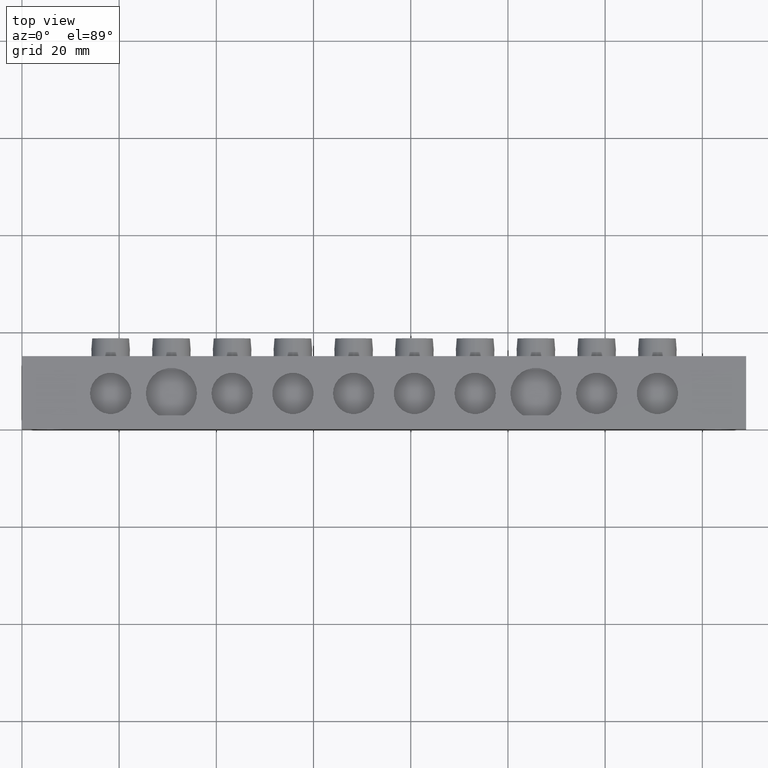
[diagram: clean part render]
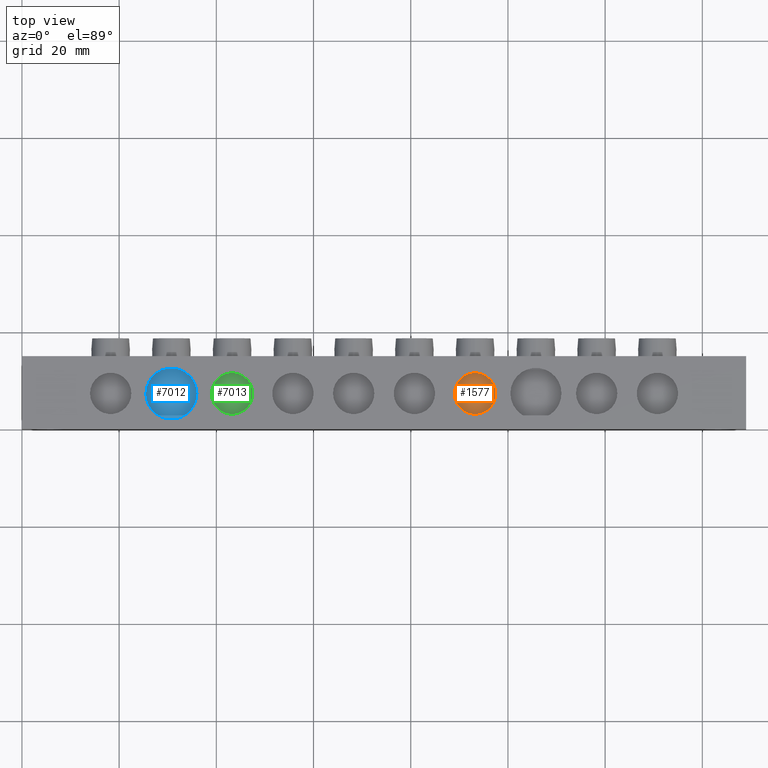
[diagram: same view with three faces highlighted in distinct colors, each labeled with its STEP entity id]
A machine part, top view with three faces highlighted in distinct colors.
Their STEP definitions:

[orange] entity #1577 — the highlighted planar face has unit normal (0, 0, -1).
#400 = ORIENTED_EDGE ( 'NONE', *, *, #3626, .T. ) ;
#418 = ORIENTED_EDGE ( 'NONE', *, *, #4193, .T. ) ;
#520 = VERTEX_POINT ( 'NONE', #6029 ) ;
#521 = VERTEX_POINT ( 'NONE', #6025 ) ;
#928 = EDGE_LOOP ( 'NONE', ( #418, #400 ) ) ;
#1422 = CIRCLE ( 'NONE', #1433, 4.250000000000003600 ) ;
#1433 = AXIS2_PLACEMENT_3D ( 'NONE', #4938, #4939, #4929 ) ;
#1577 = ADVANCED_FACE ( 'NONE', ( #5503 ), #5456, .F. ) ;
#2369 = DIRECTION ( 'NONE',  ( 0.0000000000000000000, 0.0000000000000000000, 1.000000000000000000 ) ) ;
#2377 = CARTESIAN_POINT ( 'NONE',  ( 93.25000000000000000, 7.299999999999971400, -0.5000000000000004400 ) ) ;
#2379 = DIRECTION ( 'NONE',  ( 1.000000000000000000, 0.0000000000000000000, 0.0000000000000000000 ) ) ;
#3047 = AXIS2_PLACEMENT_3D ( 'NONE', #5512, #5493, #5485 ) ;
#3246 = AXIS2_PLACEMENT_3D ( 'NONE', #2377, #2369, #2379 ) ;
#3255 = CIRCLE ( 'NONE', #3246, 4.250000000000003600 ) ;
#3626 = EDGE_CURVE ( 'NONE', #521, #520, #3255, .T. ) ;
#4193 = EDGE_CURVE ( 'NONE', #520, #521, #1422, .T. ) ;
#4929 = DIRECTION ( 'NONE',  ( 1.000000000000000000, 0.0000000000000000000, 0.0000000000000000000 ) ) ;
#4938 = CARTESIAN_POINT ( 'NONE',  ( 93.25000000000000000, 7.299999999999971400, -0.5000000000000004400 ) ) ;
#4939 = DIRECTION ( 'NONE',  ( 0.0000000000000000000, 0.0000000000000000000, 1.000000000000000000 ) ) ;
#5456 = PLANE ( 'NONE',  #3047 ) ;
#5485 = DIRECTION ( 'NONE',  ( -1.000000000000000000, 0.0000000000000000000, -0.0000000000000000000 ) ) ;
#5493 = DIRECTION ( 'NONE',  ( 0.0000000000000000000, 0.0000000000000000000, -1.000000000000000000 ) ) ;
#5503 = FACE_OUTER_BOUND ( 'NONE', #928, .T. ) ;
#5512 = CARTESIAN_POINT ( 'NONE',  ( 137.2026877376128800, 0.5000000000000038900, -0.5000000000000000000 ) ) ;
#6025 = CARTESIAN_POINT ( 'NONE',  ( 89.00000000000000000, 7.299999999999972300, -0.5000000000000004400 ) ) ;
#6029 = CARTESIAN_POINT ( 'NONE',  ( 97.50000000000000000, 7.299999999999971400, -0.5000000000000004400 ) ) ;

[blue] entity #7012 — the highlighted planar face has unit normal (0, 0, -1).
#192 = VERTEX_POINT ( 'NONE', #1290 ) ;
#223 = VERTEX_POINT ( 'NONE', #6024 ) ;
#419 = ORIENTED_EDGE ( 'NONE', *, *, #3630, .T. ) ;
#421 = ORIENTED_EDGE ( 'NONE', *, *, #4165, .T. ) ;
#979 = EDGE_LOOP ( 'NONE', ( #421, #419 ) ) ;
#1290 = CARTESIAN_POINT ( 'NONE',  ( 36.00000000000000000, 7.299999999999998900, -0.5000000000000004400 ) ) ;
#1373 = CIRCLE ( 'NONE', #1374, 5.249999999999997300 ) ;
#1374 = AXIS2_PLACEMENT_3D ( 'NONE', #4837, #4850, #4824 ) ;
#1408 = AXIS2_PLACEMENT_3D ( 'NONE', #4293, #4258, #4295 ) ;
#2389 = DIRECTION ( 'NONE',  ( 1.000000000000000000, 0.0000000000000000000, 0.0000000000000000000 ) ) ;
#2392 = DIRECTION ( 'NONE',  ( 0.0000000000000000000, 0.0000000000000000000, 1.000000000000000000 ) ) ;
#2398 = CARTESIAN_POINT ( 'NONE',  ( 30.75000000000000000, 7.299999999999998900, -0.5000000000000004400 ) ) ;
#3248 = CIRCLE ( 'NONE', #3267, 5.249999999999997300 ) ;
#3267 = AXIS2_PLACEMENT_3D ( 'NONE', #2398, #2392, #2389 ) ;
#3630 = EDGE_CURVE ( 'NONE', #223, #192, #3248, .T. ) ;
#4165 = EDGE_CURVE ( 'NONE', #192, #223, #1373, .T. ) ;
#4258 = DIRECTION ( 'NONE',  ( 0.0000000000000000000, 0.0000000000000000000, -1.000000000000000000 ) ) ;
#4273 = FACE_OUTER_BOUND ( 'NONE', #979, .T. ) ;
#4276 = PLANE ( 'NONE',  #1408 ) ;
#4293 = CARTESIAN_POINT ( 'NONE',  ( 137.2026877376128800, 0.5000000000000038900, -0.5000000000000000000 ) ) ;
#4295 = DIRECTION ( 'NONE',  ( -1.000000000000000000, 0.0000000000000000000, -0.0000000000000000000 ) ) ;
#4824 = DIRECTION ( 'NONE',  ( 1.000000000000000000, 0.0000000000000000000, 0.0000000000000000000 ) ) ;
#4837 = CARTESIAN_POINT ( 'NONE',  ( 30.75000000000000000, 7.299999999999998900, -0.5000000000000004400 ) ) ;
#4850 = DIRECTION ( 'NONE',  ( 0.0000000000000000000, 0.0000000000000000000, 1.000000000000000000 ) ) ;
#6024 = CARTESIAN_POINT ( 'NONE',  ( 25.50000000000000400, 7.299999999999999800, -0.5000000000000004400 ) ) ;
#7012 = ADVANCED_FACE ( 'NONE', ( #4273 ), #4276, .F. ) ;

[green] entity #7013 — the highlighted planar face has unit normal (0, 0, -1).
#174 = VERTEX_POINT ( 'NONE', #1304 ) ;
#403 = ORIENTED_EDGE ( 'NONE', *, *, #4174, .T. ) ;
#407 = ORIENTED_EDGE ( 'NONE', *, *, #3827, .T. ) ;
#529 = VERTEX_POINT ( 'NONE', #6016 ) ;
#984 = EDGE_LOOP ( 'NONE', ( #403, #407 ) ) ;
#1304 = CARTESIAN_POINT ( 'NONE',  ( 39.00000000000001400, 7.299999999999710300, -0.5000000000000004400 ) ) ;
#1356 = CIRCLE ( 'NONE', #1377, 4.250000000000003600 ) ;
#1377 = AXIS2_PLACEMENT_3D ( 'NONE', #4863, #4892, #4872 ) ;
#1431 = AXIS2_PLACEMENT_3D ( 'NONE', #4282, #4267, #4277 ) ;
#1913 = CARTESIAN_POINT ( 'NONE',  ( 43.25000000000001400, 7.299999999999709400, -0.5000000000000004400 ) ) ;
#1916 = DIRECTION ( 'NONE',  ( 0.0000000000000000000, 0.0000000000000000000, 1.000000000000000000 ) ) ;
#1931 = DIRECTION ( 'NONE',  ( 1.000000000000000000, 0.0000000000000000000, 0.0000000000000000000 ) ) ;
#2517 = CIRCLE ( 'NONE', #2526, 4.250000000000003600 ) ;
#2526 = AXIS2_PLACEMENT_3D ( 'NONE', #1913, #1916, #1931 ) ;
#3827 = EDGE_CURVE ( 'NONE', #174, #529, #2517, .T. ) ;
#4174 = EDGE_CURVE ( 'NONE', #529, #174, #1356, .T. ) ;
#4260 = PLANE ( 'NONE',  #1431 ) ;
#4267 = DIRECTION ( 'NONE',  ( 0.0000000000000000000, 0.0000000000000000000, -1.000000000000000000 ) ) ;
#4277 = DIRECTION ( 'NONE',  ( -1.000000000000000000, 0.0000000000000000000, -0.0000000000000000000 ) ) ;
#4282 = CARTESIAN_POINT ( 'NONE',  ( 137.2026877376128800, 0.5000000000000038900, -0.5000000000000000000 ) ) ;
#4308 = FACE_OUTER_BOUND ( 'NONE', #984, .T. ) ;
#4863 = CARTESIAN_POINT ( 'NONE',  ( 43.25000000000001400, 7.299999999999709400, -0.5000000000000004400 ) ) ;
#4872 = DIRECTION ( 'NONE',  ( 1.000000000000000000, 0.0000000000000000000, 0.0000000000000000000 ) ) ;
#4892 = DIRECTION ( 'NONE',  ( 0.0000000000000000000, 0.0000000000000000000, 1.000000000000000000 ) ) ;
#6016 = CARTESIAN_POINT ( 'NONE',  ( 47.50000000000002100, 7.299999999999709400, -0.5000000000000004400 ) ) ;
#7013 = ADVANCED_FACE ( 'NONE', ( #4308 ), #4260, .F. ) ;